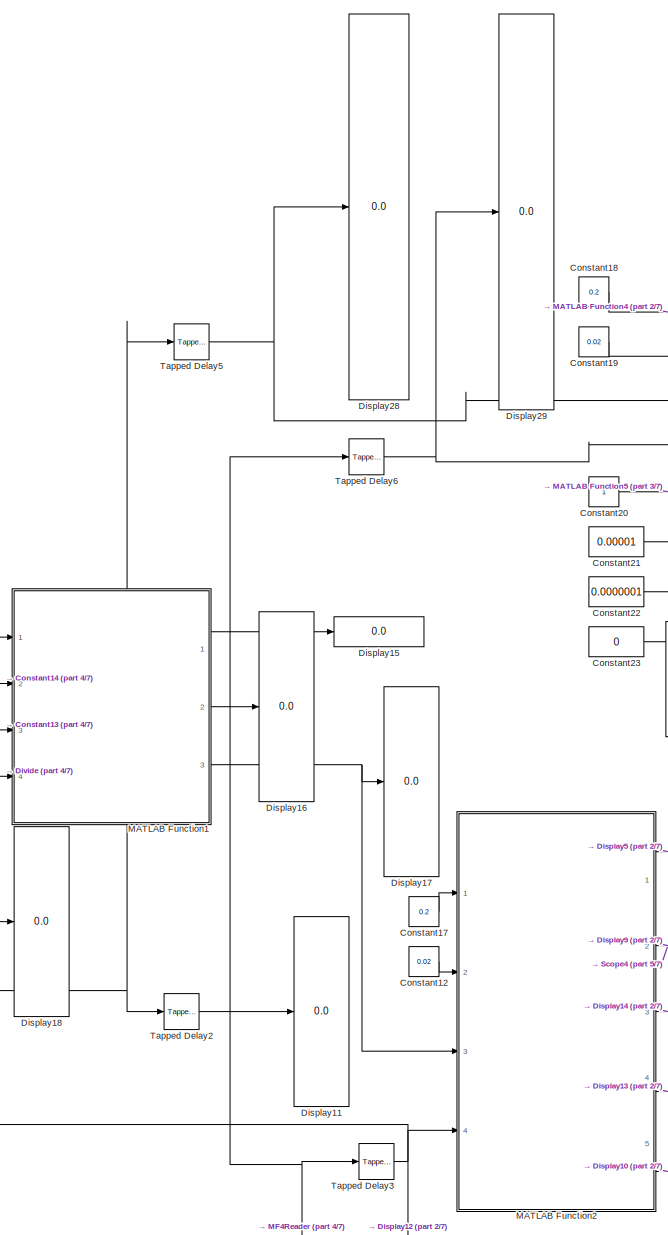
[diagram: root canvas - part 1/7, top center region]
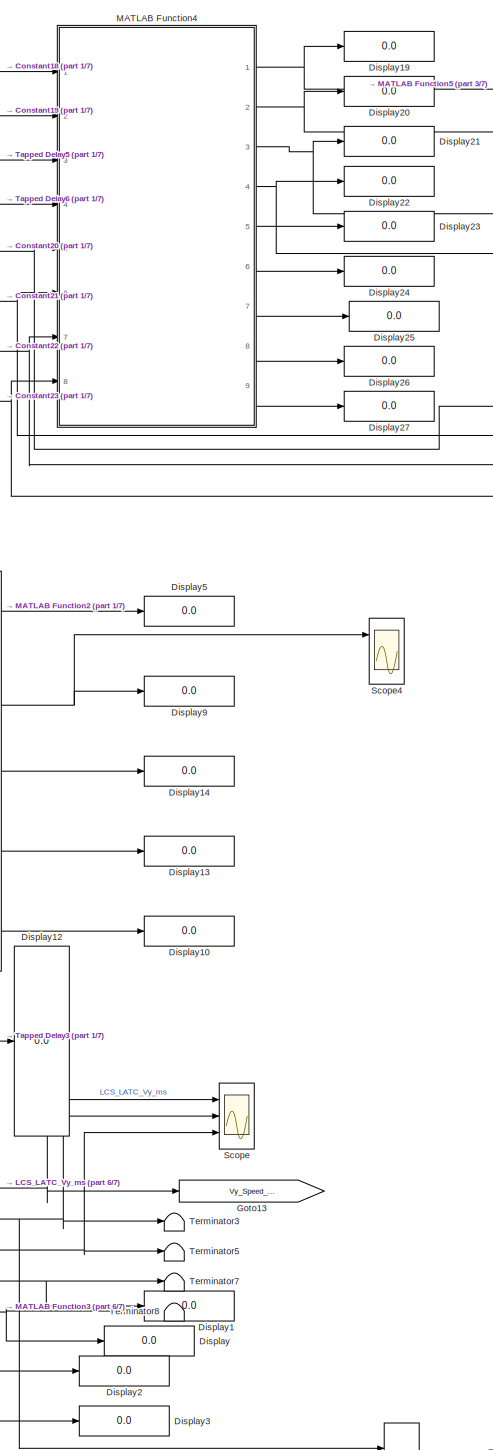
[diagram: root canvas - part 2/7, middle right region]
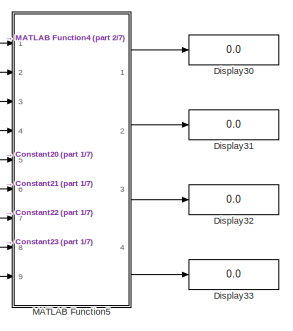
[diagram: root canvas - part 3/7, top right region]
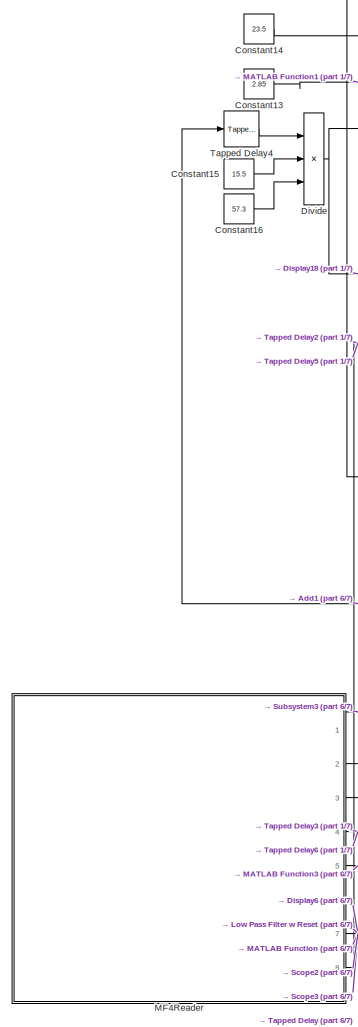
[diagram: root canvas - part 4/7, middle left region]
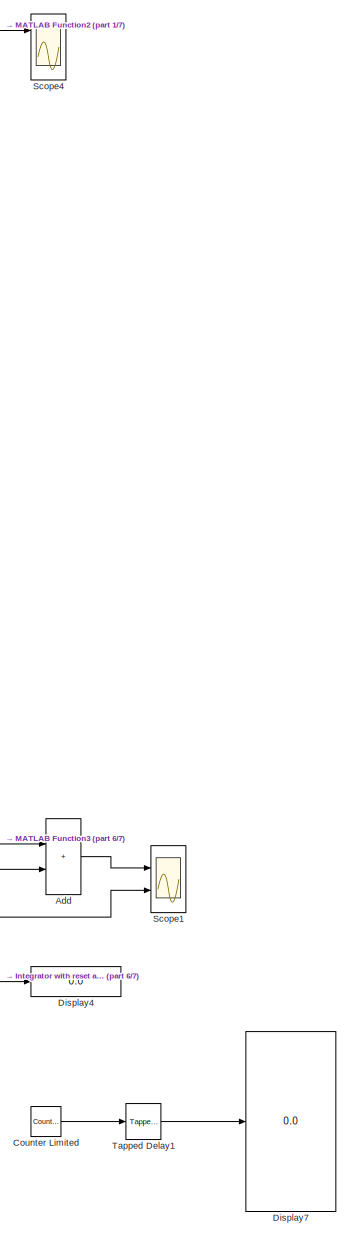
[diagram: root canvas - part 5/7, middle right region]
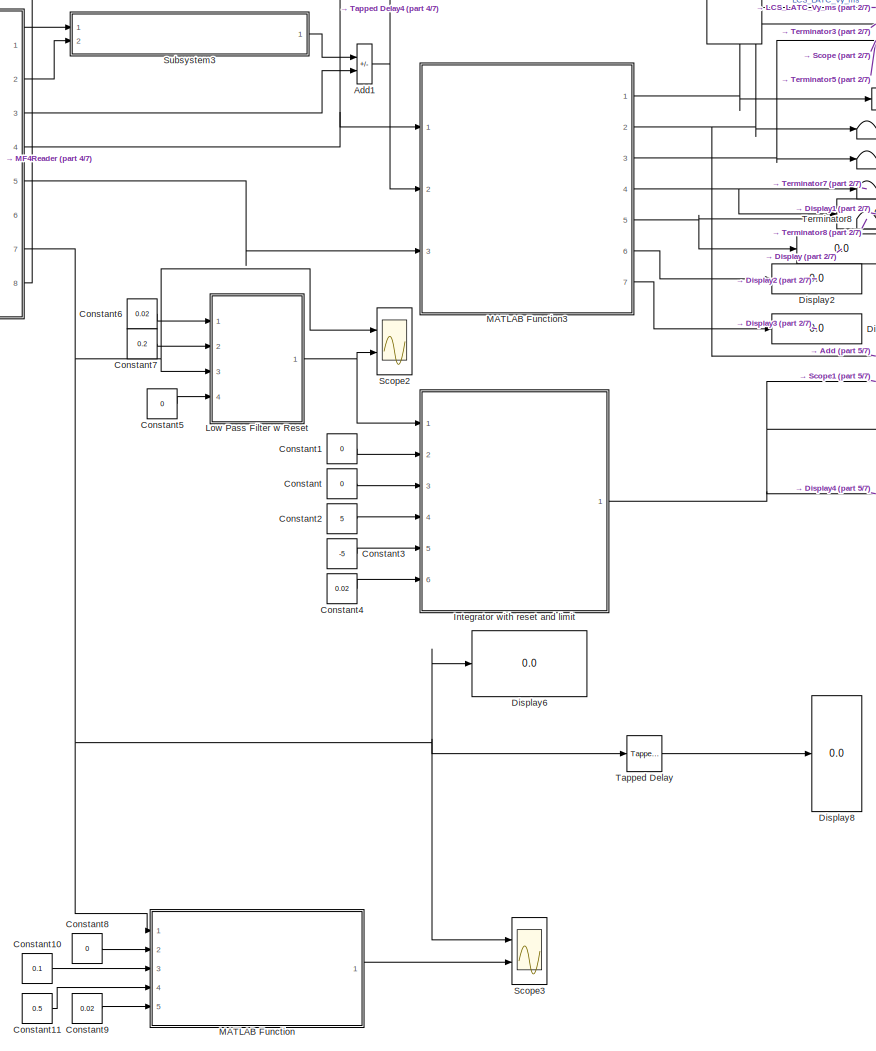
[diagram: root canvas - part 6/7, bottom center region]
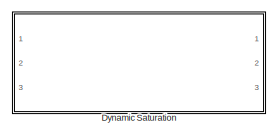
[diagram: root canvas - part 7/7, bottom center region]
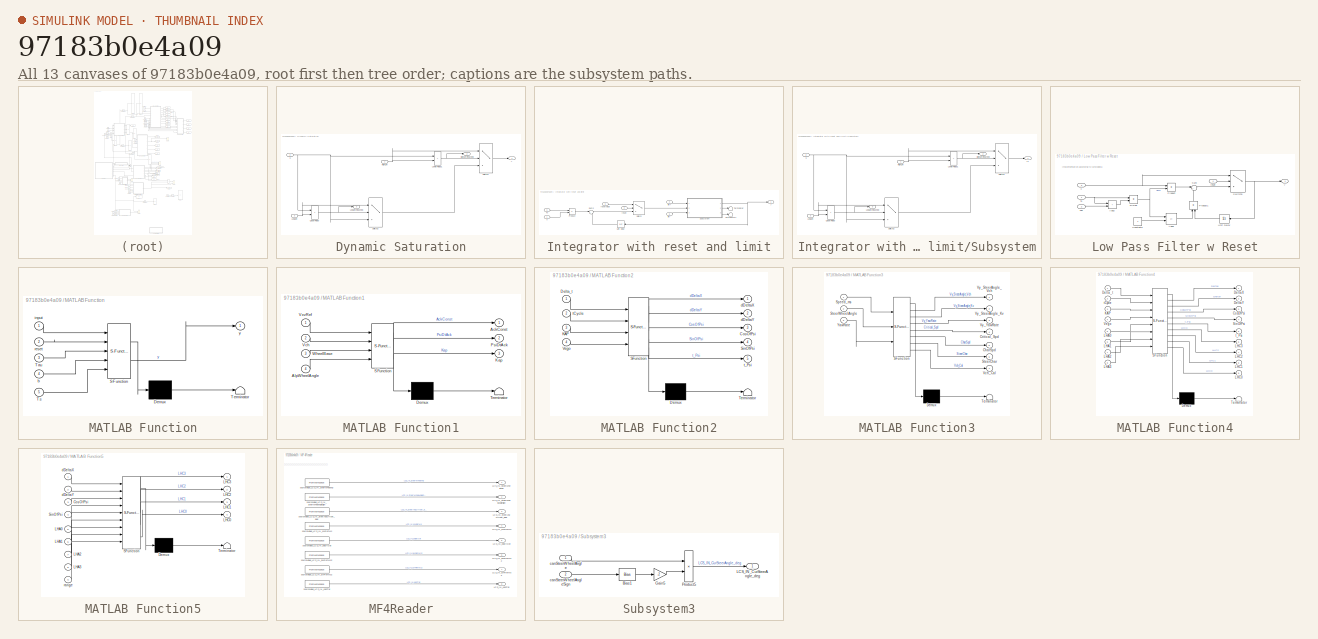
[diagram: thumbnail index - all 13 canvases of the model, root first then tree order]
MODEL slx_97183b0e4a09
KIND model
CONFIG AbsTol = auto
CONFIG EnableMultiTasking = off
CONFIG FixedStep = 0.02
CONFIG MaxStep = auto
CONFIG MinStep = auto
CONFIG RelTol = 1e-3
CONFIG SampleTimeConstraint = Unconstrained
CONFIG SolverName = FixedStepDiscrete
CONFIG StartTime = 4067.8601
CONFIG StopTime = 4107.8798
BLOCK [Sum] Add
  IconShape = rectangular
  Ports = [2, 1]
BLOCK [Sum] Add1
  IconShape = rectangular
  Inputs = +-
  Ports = [2, 1]
BLOCK [Constant] Constant
  OutDataTypeStr = single
  Value = 0
BLOCK [Constant] Constant1
  OutDataTypeStr = single
  Value = 0
BLOCK [Constant] Constant10
  OutDataTypeStr = single
  Value = 0.1
BLOCK [Constant] Constant11
  OutDataTypeStr = single
  Value = 0.5
BLOCK [Constant] Constant12
  OutDataTypeStr = single
  Value = 0.02
BLOCK [Constant] Constant13
  OutDataTypeStr = single
  Value = 2.85
BLOCK [Constant] Constant14
  OutDataTypeStr = single
  Value = 23.5
BLOCK [Constant] Constant15
  OutDataTypeStr = single
  Value = 15.5
BLOCK [Constant] Constant16
  OutDataTypeStr = single
  Value = 57.3
BLOCK [Constant] Constant17
  OutDataTypeStr = single
  Value = 0.2
BLOCK [Constant] Constant18
  OutDataTypeStr = single
  Value = 0.2
BLOCK [Constant] Constant19
  OutDataTypeStr = single
  Value = 0.02
BLOCK [Constant] Constant2
  OutDataTypeStr = single
  Value = 5
BLOCK [Constant] Constant20
  OutDataTypeStr = single
BLOCK [Constant] Constant21
  OutDataTypeStr = single
  Value = 0.00001
BLOCK [Constant] Constant22
  OutDataTypeStr = single
  Value = 0.0000001
BLOCK [Constant] Constant23
  OutDataTypeStr = single
  Value = 0
BLOCK [Constant] Constant3
  OutDataTypeStr = single
  Value = -5
BLOCK [Constant] Constant4
  OutDataTypeStr = single
  Value = 0.02
BLOCK [Constant] Constant5
  OutDataTypeStr = single
  Value = 0
BLOCK [Constant] Constant6
  OutDataTypeStr = single
  Value = 0.02
BLOCK [Constant] Constant7
  OutDataTypeStr = single
  Value = 0.2
BLOCK [Constant] Constant8
  OutDataTypeStr = single
  Value = 0
BLOCK [Constant] Constant9
  OutDataTypeStr = single
  Value = 0.02
BLOCK [Reference] Counter Limited  REF=simulink/Sources/Counter
Limited
  Ports = [0, 1]
  SourceBlock = simulink/Sources/Counter\nLimited
  SourceProductBaseCode = SL
  SourceType = Counter Limited
BLOCK [Display] Display
  Decimation = 1
  Ports = [1]
BLOCK [Display] Display1
  Decimation = 1
  Ports = [1]
BLOCK [Display] Display10
  Decimation = 1
  Ports = [1]
BLOCK [Display] Display11
  Decimation = 1
  Ports = [1]
BLOCK [Display] Display12
  Decimation = 1
  Ports = [1]
BLOCK [Display] Display13
  Decimation = 1
  Ports = [1]
BLOCK [Display] Display14
  Decimation = 1
  Ports = [1]
BLOCK [Display] Display15
  Decimation = 1
  Ports = [1]
BLOCK [Display] Display16
  Decimation = 1
  Ports = [1]
BLOCK [Display] Display17
  Decimation = 1
  Ports = [1]
BLOCK [Display] Display18
  Decimation = 1
  Ports = [1]
BLOCK [Display] Display19
  Decimation = 1
  Ports = [1]
BLOCK [Display] Display2
  Decimation = 1
  Ports = [1]
BLOCK [Display] Display20
  Decimation = 1
  Ports = [1]
BLOCK [Display] Display21
  Decimation = 1
  Ports = [1]
BLOCK [Display] Display22
  Decimation = 1
  Ports = [1]
BLOCK [Display] Display23
  Decimation = 1
  Ports = [1]
BLOCK [Display] Display24
  Decimation = 1
  Ports = [1]
BLOCK [Display] Display25
  Decimation = 1
  Ports = [1]
BLOCK [Display] Display26
  Decimation = 1
  Ports = [1]
BLOCK [Display] Display27
  Decimation = 1
  Ports = [1]
BLOCK [Display] Display28
  Decimation = 1
  Ports = [1]
BLOCK [Display] Display29
  Decimation = 1
  Ports = [1]
BLOCK [Display] Display3
  Decimation = 1
  Ports = [1]
BLOCK [Display] Display30
  Decimation = 1
  Ports = [1]
BLOCK [Display] Display31
  Decimation = 1
  Ports = [1]
BLOCK [Display] Display32
  Decimation = 1
  Ports = [1]
BLOCK [Display] Display33
  Decimation = 1
  Ports = [1]
BLOCK [Display] Display4
  Decimation = 1
  Ports = [1]
BLOCK [Display] Display5
  Decimation = 1
  Ports = [1]
BLOCK [Display] Display6
  Decimation = 1
  Ports = [1]
BLOCK [Display] Display7
  Decimation = 1
  Ports = [1]
BLOCK [Display] Display8
  Decimation = 1
  Ports = [1]
BLOCK [Display] Display9
  Decimation = 1
  Ports = [1]
BLOCK [Product] Divide
  Inputs = *//
  Ports = [3, 1]
BLOCK [SubSystem] Dynamic Saturation
  Ports = [3, 3]
  RequestExecContextInheritance = off
BLOCK [Inport] Dynamic Saturation/HighLim
BLOCK [Outport] Dynamic Saturation/HighLimReached
  Port = 2
BLOCK [Inport] Dynamic Saturation/LowLim
  Port = 3
BLOCK [Outport] Dynamic Saturation/LowLimReached
  Port = 3
BLOCK [RelationalOperator] Dynamic Saturation/LowerRelop1
  DisableCoverage = on
  InputSameDT = off
  Operator = >
  OutDataTypeStr = boolean
  Ports = [2, 1]
BLOCK [Switch] Dynamic Saturation/Switch1
  AttributesFormatString = InputSameDT = %<InputSameDT>
  Criteria = u2 ~= 0
  SaturateOnIntegerOverflow = off
BLOCK [Switch] Dynamic Saturation/Switch2
  AttributesFormatString = InputSameDT = %<InputSameDT>
  Criteria = u2 ~= 0
  SaturateOnIntegerOverflow = off
BLOCK [RelationalOperator] Dynamic Saturation/UpperRelop
  DisableCoverage = on
  InputSameDT = off
  Operator = <
  OutDataTypeStr = boolean
  Ports = [2, 1]
BLOCK [Inport] Dynamic Saturation/u
  Port = 2
BLOCK [Outport] Dynamic Saturation/y
BLOCK [Goto] Goto13
  GotoTag = Vy_Speed_ms
BLOCK [SubSystem] Integrator with reset and limit
  Ports = [6, 1]
  RequestExecContextInheritance = off
BLOCK [Product] Integrator with reset and limit/Product
  Ports = [2, 1]
  RndMeth = Zero
BLOCK [SubSystem] Integrator with reset and limit/Subsystem
  Ports = [3, 3]
  RequestExecContextInheritance = off
BLOCK [Inport] Integrator with reset and limit/Subsystem/HighLim
BLOCK [Outport] Integrator with reset and limit/Subsystem/HighLimReached
  Port = 2
BLOCK [Inport] Integrator with reset and limit/Subsystem/LowLim
  Port = 3
BLOCK [Outport] Integrator with reset and limit/Subsystem/LowLimReached
  Port = 3
BLOCK [RelationalOperator] Integrator with reset and limit/Subsystem/LowerRelop1
  DisableCoverage = on
  InputSameDT = off
  Operator = >
  OutDataTypeStr = boolean
  Ports = [2, 1]
BLOCK [Switch] Integrator with reset and limit/Subsystem/Switch1
  AttributesFormatString = InputSameDT = %<InputSameDT>
  Criteria = u2 ~= 0
  SaturateOnIntegerOverflow = off
BLOCK [Switch] Integrator with reset and limit/Subsystem/Switch2
  AttributesFormatString = InputSameDT = %<InputSameDT>
  Criteria = u2 ~= 0
  SaturateOnIntegerOverflow = off
BLOCK [RelationalOperator] Integrator with reset and limit/Subsystem/UpperRelop
  DisableCoverage = on
  InputSameDT = off
  Operator = <
  OutDataTypeStr = boolean
  Ports = [2, 1]
BLOCK [Inport] Integrator with reset and limit/Subsystem/u
  Port = 2
BLOCK [Outport] Integrator with reset and limit/Subsystem/y1
BLOCK [Sum] Integrator with reset and limit/Sum2
  Inputs = |++
  Ports = [2, 1]
BLOCK [Switch] Integrator with reset and limit/Switch
  Criteria = u2 ~= 0
  InputSameDT = off
  SaturateOnIntegerOverflow = off
BLOCK [Terminator] Integrator with reset and limit/Terminator
BLOCK [Terminator] Integrator with reset and limit/Terminator1
BLOCK [Inport] Integrator with reset and limit/Ts
  Port = 6
BLOCK [UnitDelay] Integrator with reset and limit/Unit Delay
  HasFrameUpgradeWarning = on
  SampleTime = -1
BLOCK [Inport] Integrator with reset and limit/lim+
  Port = 4
BLOCK [Inport] Integrator with reset and limit/lim-
  Port = 5
BLOCK [Inport] Integrator with reset and limit/reset
  Port = 2
BLOCK [Inport] Integrator with reset and limit/resetvalue
  Port = 3
BLOCK [Inport] Integrator with reset and limit/x
BLOCK [Outport] Integrator with reset and limit/y
BLOCK [SubSystem] Low Pass Filter w Reset
  Ports = [4, 1]
  RequestExecContextInheritance = off
BLOCK [Sum] Low Pass Filter w Reset/Add2
  IconShape = rectangular
  Ports = [2, 1]
BLOCK [Sum] Low Pass Filter w Reset/Add3
  IconShape = rectangular
  Inputs = -+
  Ports = [2, 1]
BLOCK [Constant] Low Pass Filter w Reset/Constant8
  OutDataTypeStr = single
BLOCK [Product] Low Pass Filter w Reset/Divide
  Inputs = */
  Ports = [2, 1]
BLOCK [Product] Low Pass Filter w Reset/Product
  Ports = [2, 1]
  RndMeth = Zero
BLOCK [Product] Low Pass Filter w Reset/Product1
  NameLocation = right
  Ports = [2, 1]
  RndMeth = Zero
BLOCK [Sum] Low Pass Filter w Reset/Sum
  Inputs = |++
  Ports = [2, 1]
BLOCK [Switch] Low Pass Filter w Reset/Switch3
  Criteria = u2 ~= 0
  InputSameDT = off
  SaturateOnIntegerOverflow = off
BLOCK [Inport] Low Pass Filter w Reset/Tau
  Port = 2
BLOCK [Inport] Low Pass Filter w Reset/Ts
BLOCK [UnitDelay] Low Pass Filter w Reset/Unit Delay
  HasFrameUpgradeWarning = on
  SampleTime = -1
BLOCK [Inport] Low Pass Filter w Reset/reset
  Port = 4
BLOCK [Inport] Low Pass Filter w Reset/x
  Port = 3
BLOCK [Outport] Low Pass Filter w Reset/y
  PortDimensions = 1
  SamplingMode = Sample based
  SignalType = real
  VarSizeSig = No
BLOCK [SubSystem] MATLAB Function
  ErrorFcn = Stateflow.Translate.translate
  PermitHierarchicalResolution = ExplicitOnly
  Ports = [5, 1]
  RequestExecContextInheritance = off
  SFBlockType = MATLAB Function
  TreatAsAtomicUnit = on
BLOCK [Demux] MATLAB Function/ Demux 
  Outputs = 1
  Ports = [1, 1]
BLOCK [S-Function] MATLAB Function/ SFunction 
  EnableBusSupport = on
  FunctionName = sf_sfun
  PortCounts = [5 2]
  Ports = [5, 2]
  SFcnIsStateOwnerBlock = off
  SFunctionDeploymentMode = off
  Tag = Stateflow S-Function 2
BLOCK [Terminator] MATLAB Function/ Terminator 
BLOCK [Inport] MATLAB Function/Tau
  Port = 3
BLOCK [Inport] MATLAB Function/Ts
  Port = 5
BLOCK [Inport] MATLAB Function/b
  Port = 4
BLOCK [Inport] MATLAB Function/input
BLOCK [Inport] MATLAB Function/reset
  Port = 2
BLOCK [Outport] MATLAB Function/y
BLOCK [SubSystem] MATLAB Function1
  ErrorFcn = Stateflow.Translate.translate
  PermitHierarchicalResolution = ExplicitOnly
  Ports = [4, 3]
  RequestExecContextInheritance = off
  SFBlockType = MATLAB Function
  TreatAsAtomicUnit = on
BLOCK [Demux] MATLAB Function1/ Demux 
  Outputs = 1
  Ports = [1, 1]
BLOCK [S-Function] MATLAB Function1/ SFunction 
  EnableBusSupport = on
  FunctionName = sf_sfun
  PortCounts = [4 4]
  Ports = [4, 4]
  SFcnIsStateOwnerBlock = off
  SFunctionDeploymentMode = off
  Tag = Stateflow S-Function 3
BLOCK [Terminator] MATLAB Function1/ Terminator 
BLOCK [Outport] MATLAB Function1/AckConst
BLOCK [Inport] MATLAB Function1/AlpWheelAngle
  Port = 4
BLOCK [Outport] MATLAB Function1/Kap
  Port = 3
BLOCK [Outport] MATLAB Function1/PsiDtAck
  Port = 2
BLOCK [Inport] MATLAB Function1/Vch
  Port = 2
BLOCK [Inport] MATLAB Function1/VxvRef
BLOCK [Inport] MATLAB Function1/WheelBase
  Port = 3
BLOCK [SubSystem] MATLAB Function2
  ErrorFcn = Stateflow.Translate.translate
  PermitHierarchicalResolution = ExplicitOnly
  Ports = [4, 5]
  RequestExecContextInheritance = off
  SFBlockType = MATLAB Function
  TreatAsAtomicUnit = on
BLOCK [Demux] MATLAB Function2/ Demux 
  Outputs = 1
  Ports = [1, 1]
BLOCK [S-Function] MATLAB Function2/ SFunction 
  EnableBusSupport = on
  FunctionName = sf_sfun
  PortCounts = [4 6]
  Ports = [4, 6]
  SFcnIsStateOwnerBlock = off
  SFunctionDeploymentMode = off
  Tag = Stateflow S-Function 4
BLOCK [Terminator] MATLAB Function2/ Terminator 
BLOCK [Outport] MATLAB Function2/CosOfPsi
  Port = 3
BLOCK [Inport] MATLAB Function2/Delta_t
BLOCK [Inport] MATLAB Function2/KAP
  Port = 3
BLOCK [Outport] MATLAB Function2/SinOfPsi
  Port = 4
BLOCK [Inport] MATLAB Function2/Vego
  Port = 4
BLOCK [Outport] MATLAB Function2/dDeltaX
BLOCK [Outport] MATLAB Function2/dDeltaY
  Port = 2
BLOCK [Inport] MATLAB Function2/tCycle
  Port = 2
BLOCK [Outport] MATLAB Function2/t_Psi
  Port = 5
BLOCK [SubSystem] MATLAB Function3
  ErrorFcn = Stateflow.Translate.translate
  PermitHierarchicalResolution = ExplicitOnly
  Ports = [3, 7]
  RequestExecContextInheritance = off
  SFBlockType = MATLAB Function
  TreatAsAtomicUnit = on
BLOCK [Demux] MATLAB Function3/ Demux 
  Outputs = 1
  Ports = [1, 1]
BLOCK [S-Function] MATLAB Function3/ SFunction 
  EnableBusSupport = on
  FunctionName = sf_sfun
  PortCounts = [3 8]
  Ports = [3, 8]
  SFcnIsStateOwnerBlock = off
  SFunctionDeploymentMode = off
  Tag = Stateflow S-Function 1
BLOCK [Terminator] MATLAB Function3/ Terminator 
BLOCK [Outport] MATLAB Function3/CharSpd
  Port = 5
BLOCK [Outport] MATLAB Function3/Critical_Spd
  Port = 4
BLOCK [Inport] MATLAB Function3/Speed_ms
BLOCK [Outport] MATLAB Function3/SteerChar
  Port = 6
BLOCK [Inport] MATLAB Function3/SteerWheelAngle
  Port = 2
BLOCK [Outport] MATLAB Function3/Vch_Cal
  Port = 7
BLOCK [Outport] MATLAB Function3/Vy_SteerAngle_Kv
  Port = 2
BLOCK [Outport] MATLAB Function3/Vy_SteerAngle_Vch
BLOCK [Outport] MATLAB Function3/Vy_YawRate
  Port = 3
BLOCK [Inport] MATLAB Function3/YawRate
  Port = 3
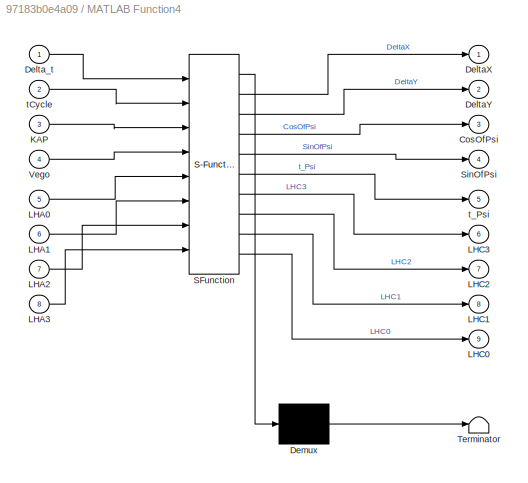
BLOCK [SubSystem] MATLAB Function4
  ErrorFcn = Stateflow.Translate.translate
  PermitHierarchicalResolution = ExplicitOnly
  Ports = [8, 9]
  RequestExecContextInheritance = off
  SFBlockType = MATLAB Function
  TreatAsAtomicUnit = on
BLOCK [Demux] MATLAB Function4/ Demux 
  Outputs = 1
  Ports = [1, 1]
BLOCK [S-Function] MATLAB Function4/ SFunction 
  EnableBusSupport = on
  FunctionName = sf_sfun
  PortCounts = [8 10]
  Ports = [8, 10]
  SFcnIsStateOwnerBlock = off
  SFunctionDeploymentMode = off
  Tag = Stateflow S-Function 5
BLOCK [Terminator] MATLAB Function4/ Terminator 
BLOCK [Outport] MATLAB Function4/CosOfPsi
  Port = 3
BLOCK [Outport] MATLAB Function4/DeltaX
BLOCK [Outport] MATLAB Function4/DeltaY
  Port = 2
BLOCK [Inport] MATLAB Function4/Delta_t
BLOCK [Inport] MATLAB Function4/KAP
  Port = 3
BLOCK [Inport] MATLAB Function4/LHA0
  Port = 5
BLOCK [Inport] MATLAB Function4/LHA1
  Port = 6
BLOCK [Inport] MATLAB Function4/LHA2
  Port = 7
BLOCK [Inport] MATLAB Function4/LHA3
  Port = 8
BLOCK [Outport] MATLAB Function4/LHC0
  Port = 9
BLOCK [Outport] MATLAB Function4/LHC1
  Port = 8
BLOCK [Outport] MATLAB Function4/LHC2
  Port = 7
BLOCK [Outport] MATLAB Function4/LHC3
  Port = 6
BLOCK [Outport] MATLAB Function4/SinOfPsi
  Port = 4
BLOCK [Inport] MATLAB Function4/Vego
  Port = 4
BLOCK [Inport] MATLAB Function4/tCycle
  Port = 2
BLOCK [Outport] MATLAB Function4/t_Psi
  Port = 5
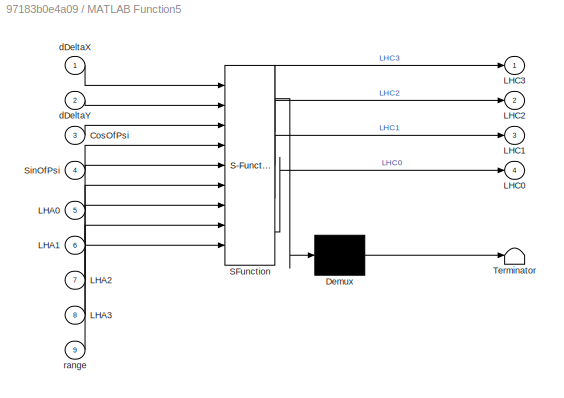
BLOCK [SubSystem] MATLAB Function5
  ErrorFcn = Stateflow.Translate.translate
  PermitHierarchicalResolution = ExplicitOnly
  Ports = [9, 4]
  RequestExecContextInheritance = off
  SFBlockType = MATLAB Function
  TreatAsAtomicUnit = on
BLOCK [Demux] MATLAB Function5/ Demux 
  Outputs = 1
  Ports = [1, 1]
BLOCK [S-Function] MATLAB Function5/ SFunction 
  EnableBusSupport = on
  FunctionName = sf_sfun
  PortCounts = [9 5]
  Ports = [9, 5]
  SFcnIsStateOwnerBlock = off
  SFunctionDeploymentMode = off
  Tag = Stateflow S-Function 6
BLOCK [Terminator] MATLAB Function5/ Terminator 
BLOCK [Inport] MATLAB Function5/CosOfPsi
  Port = 3
BLOCK [Inport] MATLAB Function5/LHA0
  Port = 5
BLOCK [Inport] MATLAB Function5/LHA1
  Port = 6
BLOCK [Inport] MATLAB Function5/LHA2
  Port = 7
BLOCK [Inport] MATLAB Function5/LHA3
  Port = 8
BLOCK [Outport] MATLAB Function5/LHC0
  Port = 4
BLOCK [Outport] MATLAB Function5/LHC1
  Port = 3
BLOCK [Outport] MATLAB Function5/LHC2
  Port = 2
BLOCK [Outport] MATLAB Function5/LHC3
BLOCK [Inport] MATLAB Function5/SinOfPsi
  Port = 4
BLOCK [Inport] MATLAB Function5/dDeltaX
BLOCK [Inport] MATLAB Function5/dDeltaY
  Port = 2
BLOCK [Inport] MATLAB Function5/range
  Port = 9
BLOCK [SubSystem] MF4Reader
  AttributesFormatString = %<Description>
  Description = Comment: 汇出有碰撞风险
  NameLocation = top
  Ports = [0, 8]
  RequestExecContextInheritance = off
BLOCK [Outport] MF4Reader/LCS_IN_SteerAngOffset_deg
  Port = 3
BLOCK [Outport] MF4Reader/LCS_IN_SteerWheelAng
BLOCK [Outport] MF4Reader/LCS_IN_SteerWheelAngleSign
  Port = 2
BLOCK [Outport] MF4Reader/LCS_IN_axvRefMs2
  Port = 6
BLOCK [Outport] MF4Reader/LCS_IN_ayvRefMs2
  Port = 7
BLOCK [Outport] MF4Reader/LCS_IN_kapTraj
  Port = 8
BLOCK [Outport] MF4Reader/LCS_IN_psiDtOpt
  Port = 5
BLOCK [Outport] MF4Reader/LCS_IN_vxvRefMs
  Port = 4
BLOCK [FromWorkspace] MF4Reader/sourceValue_LCS_IN_SteerAngOffset_deg
  Interpolate = off
  OutputAfterFinalValue = Setting to zero
  VariableName = s_LCS_IN_SteerAngOffset_deg
BLOCK [FromWorkspace] MF4Reader/sourceValue_LCS_IN_SteerWheelAng
  Interpolate = off
  OutputAfterFinalValue = Setting to zero
  VariableName = s_LCS_IN_SteerWheelAng
BLOCK [FromWorkspace] MF4Reader/sourceValue_LCS_IN_SteerWheelAngleSign
  Interpolate = off
  OutputAfterFinalValue = Setting to zero
  VariableName = s_LCS_IN_SteerWheelAngleSign
BLOCK [FromWorkspace] MF4Reader/sourceValue_LCS_IN_axvRefMs2
  Interpolate = off
  OutputAfterFinalValue = Setting to zero
  VariableName = s_LCS_IN_axvRefMs2
BLOCK [FromWorkspace] MF4Reader/sourceValue_LCS_IN_ayvRefMs2
  Interpolate = off
  OutputAfterFinalValue = Setting to zero
  VariableName = s_LCS_IN_ayvRefMs2
BLOCK [FromWorkspace] MF4Reader/sourceValue_LCS_IN_kapTraj
  Interpolate = off
  OutputAfterFinalValue = Setting to zero
  VariableName = s_LCS_IN_kapTraj
BLOCK [FromWorkspace] MF4Reader/sourceValue_LCS_IN_psiDtOpt
  Interpolate = off
  OutputAfterFinalValue = Setting to zero
  VariableName = s_LCS_IN_psiDtOpt
BLOCK [FromWorkspace] MF4Reader/sourceValue_LCS_IN_vxvRefMs
  Interpolate = off
  OutputAfterFinalValue = Setting to zero
  VariableName = s_LCS_IN_vxvRefMs
BLOCK [Scope] Scope
  Floating = off
  NumInputPorts = 3
  Ports = [3]
  ScopeSpecificationString = Simulink.scopes.TimeScopeBlockCfg('CurrentConfiguration', extmgr.ConfigurationSet(extmgr.Configuration('Core','General UI',true),extmgr.Configuration('Core','Source UI',true),extmgr.Configuration('Sources','WiredSimulink',true),extmgr.Configuration('Visuals','Time Domain',true,'SerializedDisplays',{struct('MinYLimReal','-0.05441','MaxYLimReal','0.03364','YLabelReal','','MinYLimMag','0.00000','MaxY...<+1775ch>
BLOCK [Scope] Scope1
  Floating = off
  NumInputPorts = 2
  Ports = [2]
  ScopeSpecificationString = Simulink.scopes.TimeScopeBlockCfg('CurrentConfiguration', extmgr.ConfigurationSet(extmgr.Configuration('Core','General UI',true),extmgr.Configuration('Core','Source UI',true),extmgr.Configuration('Sources','WiredSimulink',true,'DataLoggingVariableName','ScopeData1'),extmgr.Configuration('Visuals','Time Domain',true,'SerializedDisplays',{struct('MinYLimReal','-1.54825','MaxYLimReal','1.85164','YLab...<+1473ch>
BLOCK [Scope] Scope2
  Floating = off
  NumInputPorts = 2
  Ports = [2]
  ScopeSpecificationString = Simulink.scopes.TimeScopeBlockCfg('CurrentConfiguration', extmgr.ConfigurationSet(extmgr.Configuration('Core','General UI',true),extmgr.Configuration('Core','Source UI',true),extmgr.Configuration('Sources','WiredSimulink',true,'DataLoggingVariableName','ScopeData2'),extmgr.Configuration('Visuals','Time Domain',true,'SerializedDisplays',{struct('MinYLimReal','-1.35265','MaxYLimReal','0.53262','YLab...<+1843ch>
BLOCK [Scope] Scope3
  Floating = off
  NumInputPorts = 2
  Ports = [2]
  ScopeSpecificationString = Simulink.scopes.TimeScopeBlockCfg('CurrentConfiguration', extmgr.ConfigurationSet(extmgr.Configuration('Core','General UI',true),extmgr.Configuration('Core','Source UI',true),extmgr.Configuration('Sources','WiredSimulink',true,'DataLoggingVariableName','ScopeData3'),extmgr.Configuration('Visuals','Time Domain',true,'SerializedDisplays',{struct('MinYLimReal','-3.44406','MaxYLimReal','1.90658','YLab...<+1472ch>
BLOCK [Scope] Scope4
  Floating = off
  NumInputPorts = 3
  Ports = [3]
  ScopeSpecificationString = Simulink.scopes.TimeScopeBlockCfg('CurrentConfiguration', extmgr.ConfigurationSet(extmgr.Configuration('Core','General UI',true),extmgr.Configuration('Core','Source UI',true),extmgr.Configuration('Sources','WiredSimulink',true,'DataLoggingVariableName','ScopeData1'),extmgr.Configuration('Visuals','Time Domain',true,'SerializedDisplays',{struct('MinYLimReal','-0.00313','MaxYLimReal','0.00174','YLab...<+2059ch>
BLOCK [SubSystem] Subsystem3
  Ports = [2, 1]
  RequestExecContextInheritance = off
BLOCK [Bias] Subsystem3/Bias1
  Bias = -0.5
  SaturateOnIntegerOverflow = off
BLOCK [Gain] Subsystem3/Gain5
  Gain = -2
BLOCK [Outport] Subsystem3/LCS_IN_CurSteerAngle_deg
BLOCK [Product] Subsystem3/Product5
  Ports = [2, 1]
BLOCK [Inport] Subsystem3/canSteerWheelAngle
BLOCK [Inport] Subsystem3/canSteerWheelAngleSign
  Port = 2
BLOCK [Reference] Tapped Delay  REF=simulink/Discrete/Tapped Delay
  Ports = [1, 1]
  SourceBlock = simulink/Discrete/Tapped Delay
  SourceProductBaseCode = SL
  SourceType = Tapped Delay Line
BLOCK [Reference] Tapped Delay1  REF=simulink/Discrete/Tapped Delay
  Ports = [1, 1]
  SourceBlock = simulink/Discrete/Tapped Delay
  SourceProductBaseCode = SL
  SourceType = Tapped Delay Line
BLOCK [Reference] Tapped Delay2  REF=simulink/Discrete/Tapped Delay
  Ports = [1, 1]
  SourceBlock = simulink/Discrete/Tapped Delay
  SourceProductBaseCode = SL
  SourceType = Tapped Delay Line
BLOCK [Reference] Tapped Delay3  REF=simulink/Discrete/Tapped Delay
  Ports = [1, 1]
  SourceBlock = simulink/Discrete/Tapped Delay
  SourceProductBaseCode = SL
  SourceType = Tapped Delay Line
BLOCK [Reference] Tapped Delay4  REF=simulink/Discrete/Tapped Delay
  Ports = [1, 1]
  SourceBlock = simulink/Discrete/Tapped Delay
  SourceProductBaseCode = SL
  SourceType = Tapped Delay Line
BLOCK [Reference] Tapped Delay5  REF=simulink/Discrete/Tapped Delay
  Ports = [1, 1]
  SourceBlock = simulink/Discrete/Tapped Delay
  SourceProductBaseCode = SL
  SourceType = Tapped Delay Line
BLOCK [Reference] Tapped Delay6  REF=simulink/Discrete/Tapped Delay
  Ports = [1, 1]
  SourceBlock = simulink/Discrete/Tapped Delay
  SourceProductBaseCode = SL
  SourceType = Tapped Delay Line
BLOCK [Terminator] Terminator3
BLOCK [Terminator] Terminator5
BLOCK [Terminator] Terminator7
BLOCK [Terminator] Terminator8
ANNOTATION Low Pass Filter w Reset: Implementation according to Wikipedia
ANNOTATION MF4Reader: 请勿手动删减内部的模块，否则可能带来未知错误！
NET Add1:1 -> MATLAB Function3:2, Tapped Delay4:1
LINE Add:1 -> Scope1:1
LINE Constant10:1 -> MATLAB Function:3
LINE Constant11:1 -> MATLAB Function:4
LINE Constant12:1 -> MATLAB Function2:2
LINE Constant13:1 -> MATLAB Function1:3
LINE Constant14:1 -> MATLAB Function1:2
LINE Constant15:1 -> Divide:2
LINE Constant16:1 -> Divide:3
LINE Constant17:1 -> MATLAB Function2:1
LINE Constant18:1 -> MATLAB Function4:1
LINE Constant19:1 -> MATLAB Function4:2
LINE Constant1:1 -> Integrator with reset and limit:2
NET Constant20:1 -> MATLAB Function4:5, MATLAB Function5:5
NET Constant21:1 -> MATLAB Function4:6, MATLAB Function5:6
NET Constant22:1 -> MATLAB Function4:7, MATLAB Function5:7
NET Constant23:1 -> MATLAB Function4:8, MATLAB Function5:8, MATLAB Function5:9
LINE Constant2:1 -> Integrator with reset and limit:4
LINE Constant3:1 -> Integrator with reset and limit:5
LINE Constant4:1 -> Integrator with reset and limit:6
LINE Constant5:1 -> Low Pass Filter w Reset:4
LINE Constant6:1 -> Low Pass Filter w Reset:1
LINE Constant7:1 -> Low Pass Filter w Reset:2
LINE Constant8:1 -> MATLAB Function:2
LINE Constant9:1 -> MATLAB Function:5
LINE Constant:1 -> Integrator with reset and limit:3
LINE Counter Limited:1 -> Tapped Delay1:1
NET Divide:1 -> Display18:1, MATLAB Function1:4
NET Dynamic Saturation/HighLim:1 -> Dynamic Saturation/LowerRelop1:2, Dynamic Saturation/Switch1:1
NET Dynamic Saturation/LowLim:1 -> Dynamic Saturation/Switch2:1, Dynamic Saturation/UpperRelop:2
NET Dynamic Saturation/LowerRelop1:1 -> Dynamic Saturation/HighLimReached:1, Dynamic Saturation/Switch1:2
LINE Dynamic Saturation/Switch1:1 -> Dynamic Saturation/y:1
LINE Dynamic Saturation/Switch2:1 -> Dynamic Saturation/Switch1:3
NET Dynamic Saturation/UpperRelop:1 -> Dynamic Saturation/LowLimReached:1, Dynamic Saturation/Switch2:2
NET Dynamic Saturation/u:1 -> Dynamic Saturation/LowerRelop1:1, Dynamic Saturation/Switch2:3, Dynamic Saturation/UpperRelop:1
LINE Integrator with reset and limit/Product:1 -> Integrator with reset and limit/Sum2:1
NET Integrator with reset and limit/Subsystem/HighLim:1 -> Integrator with reset and limit/Subsystem/LowerRelop1:2, Integrator with reset and limit/Subsystem/Switch1:1
NET Integrator with reset and limit/Subsystem/LowLim:1 -> Integrator with reset and limit/Subsystem/Switch2:1, Integrator with reset and limit/Subsystem/UpperRelop:2
NET Integrator with reset and limit/Subsystem/LowerRelop1:1 -> Integrator with reset and limit/Subsystem/HighLimReached:1, Integrator with reset and limit/Subsystem/Switch1:2
LINE Integrator with reset and limit/Subsystem/Switch1:1 -> Integrator with reset and limit/Subsystem/y1:1
LINE Integrator with reset and limit/Subsystem/Switch2:1 -> Integrator with reset and limit/Subsystem/Switch1:3
NET Integrator with reset and limit/Subsystem/UpperRelop:1 -> Integrator with reset and limit/Subsystem/LowLimReached:1, Integrator with reset and limit/Subsystem/Switch2:2
NET Integrator with reset and limit/Subsystem/u:1 -> Integrator with reset and limit/Subsystem/LowerRelop1:1, Integrator with reset and limit/Subsystem/Switch2:3, Integrator with reset and limit/Subsystem/UpperRelop:1
NET Integrator with reset and limit/Subsystem:1 -> Integrator with reset and limit/Unit Delay:1, Integrator with reset and limit/y:1
LINE Integrator with reset and limit/Subsystem:2 -> Integrator with reset and limit/Terminator:1
LINE Integrator with reset and limit/Subsystem:3 -> Integrator with reset and limit/Terminator1:1
LINE Integrator with reset and limit/Sum2:1 -> Integrator with reset and limit/Switch:3
LINE Integrator with reset and limit/Switch:1 -> Integrator with reset and limit/Subsystem:2
LINE Integrator with reset and limit/Ts:1 -> Integrator with reset and limit/Product:1
LINE Integrator with reset and limit/Unit Delay:1 -> Integrator with reset and limit/Sum2:2
LINE Integrator with reset and limit/lim+:1 -> Integrator with reset and limit/Subsystem:1
LINE Integrator with reset and limit/lim-:1 -> Integrator with reset and limit/Subsystem:3
LINE Integrator with reset and limit/reset:1 -> Integrator with reset and limit/Switch:2
LINE Integrator with reset and limit/resetvalue:1 -> Integrator with reset and limit/Switch:1
LINE Integrator with reset and limit/x:1 -> Integrator with reset and limit/Product:2
NET Integrator with reset and limit:1 -> Add:2, Display4:1, Scope1:2
LINE Low Pass Filter w Reset/Add2:1 -> Low Pass Filter w Reset/Divide:2
LINE Low Pass Filter w Reset/Add3:1 -> Low Pass Filter w Reset/Product1:1
LINE Low Pass Filter w Reset/Constant8:1 -> Low Pass Filter w Reset/Add3:2
NET Low Pass Filter w Reset/Divide:1 -> Low Pass Filter w Reset/Add3:1, Low Pass Filter w Reset/Product:2
LINE Low Pass Filter w Reset/Product1:1 -> Low Pass Filter w Reset/Sum:2
LINE Low Pass Filter w Reset/Product:1 -> Low Pass Filter w Reset/Sum:1
LINE Low Pass Filter w Reset/Sum:1 -> Low Pass Filter w Reset/Switch3:3
NET Low Pass Filter w Reset/Switch3:1 -> Low Pass Filter w Reset/Unit Delay:1, Low Pass Filter w Reset/y:1
LINE Low Pass Filter w Reset/Tau:1 -> Low Pass Filter w Reset/Add2:2
NET Low Pass Filter w Reset/Ts:1 -> Low Pass Filter w Reset/Add2:1, Low Pass Filter w Reset/Divide:1
LINE Low Pass Filter w Reset/Unit Delay:1 -> Low Pass Filter w Reset/Product1:2
LINE Low Pass Filter w Reset/reset:1 -> Low Pass Filter w Reset/Switch3:2
NET Low Pass Filter w Reset/x:1 -> Low Pass Filter w Reset/Product:1, Low Pass Filter w Reset/Switch3:1
NET Low Pass Filter w Reset:1 -> Integrator with reset and limit:1, Scope2:2
LINE MATLAB Function1:1 -> Display15:1
LINE MATLAB Function1:2 -> Display16:1
NET MATLAB Function1:3 -> Display17:1, MATLAB Function2:3
LINE MATLAB Function2:1 -> Display5:1
NET MATLAB Function2:2 -> Display9:1, Scope4:1
LINE MATLAB Function2:3 -> Display14:1
LINE MATLAB Function2:4 -> Display13:1
LINE MATLAB Function2:5 -> Display10:1
NET MATLAB Function3:1 -> Goto13:1, Scope:1
NET MATLAB Function3:2 -> Add:1, Scope:2, Terminator3:1
NET MATLAB Function3:3 -> Scope:3, Terminator5:1
NET MATLAB Function3:4 -> Display1:1, Terminator7:1
NET MATLAB Function3:5 -> Display:1, Terminator8:1
LINE MATLAB Function3:6 -> Display2:1
LINE MATLAB Function3:7 -> Display3:1
NET MATLAB Function4:1 -> Display19:1, MATLAB Function5:1
NET MATLAB Function4:2 -> Display20:1, MATLAB Function5:2
NET MATLAB Function4:3 -> Display21:1, MATLAB Function5:3
NET MATLAB Function4:4 -> Display22:1, MATLAB Function5:4
LINE MATLAB Function4:5 -> Display23:1
LINE MATLAB Function4:6 -> Display24:1
LINE MATLAB Function4:7 -> Display25:1
LINE MATLAB Function4:8 -> Display26:1
LINE MATLAB Function4:9 -> Display27:1
LINE MATLAB Function5:1 -> Display30:1
LINE MATLAB Function5:2 -> Display31:1
LINE MATLAB Function5:3 -> Display32:1
LINE MATLAB Function5:4 -> Display33:1
LINE MATLAB Function:1 -> Scope3:2
LINE MF4Reader/sourceValue_LCS_IN_SteerAngOffset_deg:1 -> MF4Reader/LCS_IN_SteerAngOffset_deg:1
LINE MF4Reader/sourceValue_LCS_IN_SteerWheelAng:1 -> MF4Reader/LCS_IN_SteerWheelAng:1
LINE MF4Reader/sourceValue_LCS_IN_SteerWheelAngleSign:1 -> MF4Reader/LCS_IN_SteerWheelAngleSign:1
LINE MF4Reader/sourceValue_LCS_IN_axvRefMs2:1 -> MF4Reader/LCS_IN_axvRefMs2:1
LINE MF4Reader/sourceValue_LCS_IN_ayvRefMs2:1 -> MF4Reader/LCS_IN_ayvRefMs2:1
LINE MF4Reader/sourceValue_LCS_IN_kapTraj:1 -> MF4Reader/LCS_IN_kapTraj:1
LINE MF4Reader/sourceValue_LCS_IN_psiDtOpt:1 -> MF4Reader/LCS_IN_psiDtOpt:1
LINE MF4Reader/sourceValue_LCS_IN_vxvRefMs:1 -> MF4Reader/LCS_IN_vxvRefMs:1
LINE MF4Reader:1 -> Subsystem3:1
LINE MF4Reader:2 -> Subsystem3:2
LINE MF4Reader:3 -> Add1:2
NET MF4Reader:4 -> MATLAB Function3:1, Tapped Delay3:1, Tapped Delay6:1
LINE MF4Reader:5 -> MATLAB Function3:3
NET MF4Reader:7 -> Display6:1, Low Pass Filter w Reset:3, MATLAB Function:1, Scope2:1, Scope3:1, Tapped Delay:1
NET MF4Reader:8 -> Tapped Delay2:1, Tapped Delay5:1
LINE Subsystem3/Bias1:1 -> Subsystem3/Gain5:1
LINE Subsystem3/Gain5:1 -> Subsystem3/Product5:2
LINE Subsystem3/Product5:1 -> Subsystem3/LCS_IN_CurSteerAngle_deg:1
LINE Subsystem3/canSteerWheelAngle:1 -> Subsystem3/Product5:1
LINE Subsystem3/canSteerWheelAngleSign:1 -> Subsystem3/Bias1:1
LINE Subsystem3:1 -> Add1:1
LINE Tapped Delay1:1 -> Display7:1
LINE Tapped Delay2:1 -> Display11:1
NET Tapped Delay3:1 -> Display12:1, MATLAB Function1:1, MATLAB Function2:4
LINE Tapped Delay4:1 -> Divide:1
NET Tapped Delay5:1 -> Display28:1, MATLAB Function4:3
NET Tapped Delay6:1 -> Display29:1, MATLAB Function4:4
LINE Tapped Delay:1 -> Display8:1
note: NET lines group one-source signal fan-out (src -> all destinations, sorted); 1:1 wires keep LINE
CHART MATLAB Function3 states=1 transitions=1
  STATE_LABEL 'eML_blk_kernel()'
  STATE_LABEL 'SCRIPT:\nfunction [Vy_SteerAngle_Vch,Vy_SteerAngle_Kv,Vy_YawRate,Critical_Spd,CharSpd,SteerChar,Vch_Cal]= Vy_Calc(Speed_ms,SteerWheelAngle,YawRate)\n    m = single(1720);\n    L=single(2.91);\n    a = single(1.27);\n    b = single(1.64);\n    Vch=single(23.5);\n    caf = single(2*55000);\n    car = single(2*75000);\n    %%  根据Vy/steerAngle = K_gain，其中Kv(不足转向斜率)根据特征车速计算\n    KKg1 = (Vch*Vch*Speed_ms)/((Vch^2...<+3608ch>'
CHART MATLAB Function states=1 transitions=1
  STATE_LABEL 'eML_blk_kernel()'
  STATE_LABEL 'SCRIPT:\nfunction y = LatCtrlLeadFilter(input, reset, Tau, b, Ts)\n%#codegen\n%Description: Discrete implementation of the continious lead filter \n%G_lead_continious = (1+s*Tau)/(1+s*Tau) using Tustin transformation \n%(also known as bilinear transformation), hence s=2*(z-1)/(Ts*(z+1));\n\n%--------------Inputs----------------------------------------------\n%input                  input to lead filter\n%r...<+979ch>'
CHART MATLAB Function1 states=1 transitions=1
  STATE_LABEL 'eML_blk_kernel()'
  STATE_LABEL 'SCRIPT:\nfunction [AckConst,PsiDtAck,Kap] = Ackman(VxvRef,Vch,WheelBase,AlpWheelAngle)\n%#codegen\nAckConst = single(zeros(1,1));\nPsiDtAck = single(zeros(length(AlpWheelAngle),1));\nKap = single(zeros(length(AlpWheelAngle),1));\nfor i = 1:length(AlpWheelAngle)\n    if VxvRef(i,1)==uint8(0)%转换常数数据类型\n        PsiDtAck(i,1) = single(0);%转换常数数据类型\n        AckConst = single(1);%转换常数数据类型\n    else\n        AckCon...<+222ch>'
CHART MATLAB Function2 states=1 transitions=1
  STATE_LABEL 'eML_blk_kernel()'
  STATE_LABEL 'SCRIPT:\nfunction [dDeltaX,dDeltaY,CosOfPsi,SinOfPsi,t_Psi] = EgoVehicleMovement(Delta_t,tCycle,KAP,Vego)\n%#codegen\ndDeltaX = single(0);\ndDeltaY = single(0);\nt_Psi = single(0);\nCosOfPsi = single(0);\nSinOfPsi = single(0);\nKAP_Num = round(Delta_t/tCycle);\nKAP_temp = KAP(length(KAP)-KAP_Num:1:end);\nVego = Vego(length(KAP)-KAP_Num:1:end);\n\nfor i = 1:length(KAP_temp)-1 % KAP 从最早时间开始排列\n    Kap = KAP_temp...<+417ch>'
CHART MATLAB Function4 states=1 transitions=1
  STATE_LABEL 'eML_blk_kernel()'
  STATE_LABEL 'SCRIPT:\nfunction [DeltaX,DeltaY,CosOfPsi,SinOfPsi,t_Psi,LHC3,LHC2,LHC1,LHC0] = EgoVehicleMovement(Delta_t,tCycle,KAP,Vego,LHA0,LHA1,LHA2,LHA3)\n%#codegen\n% 线上取点\nA = single(0);B = single(0);C = single(0);D = single(0);\ntemp_x = [0,20,40,80];\ny1 = LHA0+LHA1*temp_x(1)+LHA2*temp_x(1)^2+LHA3*temp_x(1)^3;\ny2 = LHA0+LHA1*temp_x(2)+LHA2*temp_x(2)^2+LHA3*temp_x(2)^3;\ny3 = LHA0+LHA1*temp_x(3)+LHA2*temp_x(3)^...<+1930ch>'
CHART MATLAB Function5 states=1 transitions=1
  STATE_LABEL 'eML_blk_kernel()'
  STATE_LABEL 'SCRIPT:\nfunction [LHC3,LHC2,LHC1,LHC0] = fcn(dDeltaX,dDeltaY,CosOfPsi,SinOfPsi,LHA0,LHA1,LHA2,LHA3,range)\n\n % temp_x = [0,1/4*range,1/2*range,range];\n temp_x = [0,20,40,80];\n  \n y1 = LHA0+LHA1*temp_x(1)+LHA2*temp_x(1)^2+LHA3*temp_x(1)^3;\n y2 = LHA0+LHA1*temp_x(2)+LHA2*temp_x(2)^2+LHA3*temp_x(2)^3;\n y3 = LHA0+LHA1*temp_x(3)+LHA2*temp_x(3)^2+LHA3*temp_x(3)^3;\n y4 = LHA0+LHA1*temp_x(4)+LHA2*temp_x(4)...<+793ch>'
CHART  states=0 transitions=0
CHART  states=0 transitions=0
CHART  states=0 transitions=0
CHART  states=0 transitions=0
CHART  states=0 transitions=0
CHART  states=0 transitions=0
